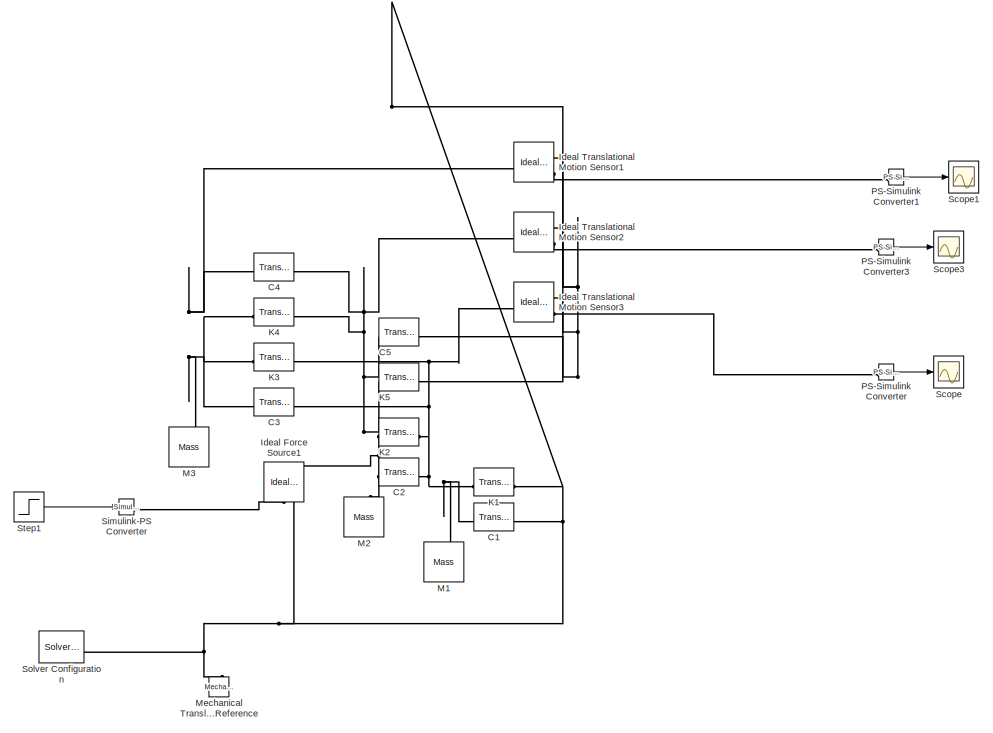
[diagram: root canvas - part 1/2, middle right region]
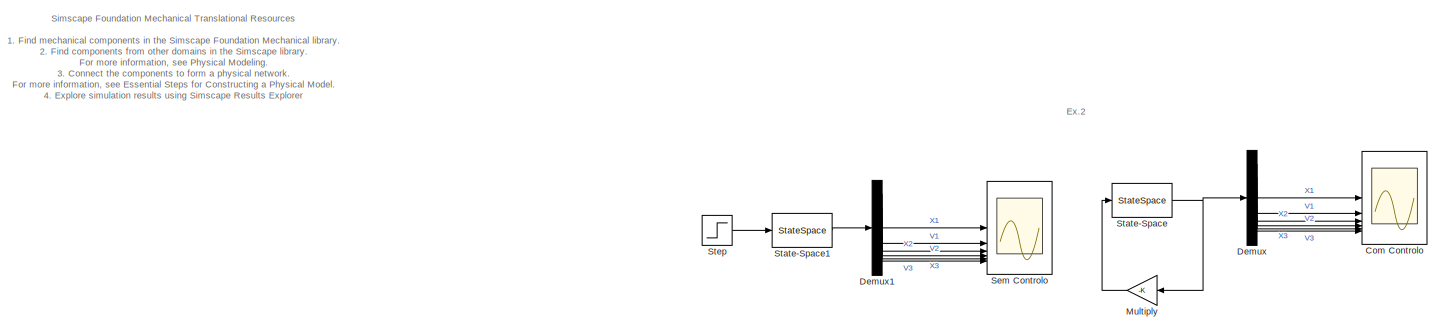
[diagram: root canvas - part 2/2, full width, bottom band]
MODEL slx_34393ef30c78
KIND model
CONFIG AbsTol = auto
CONFIG EnableMultiTasking = off
CONFIG FixedStep = auto
CONFIG MaxStep = auto
CONFIG MinStep = auto
CONFIG RelTol = 1e-3
CONFIG SampleTimeConstraint = Unconstrained
CONFIG SolverName = VariableStepAuto
CONFIG StartTime = 0.0
CONFIG StopTime = 10.0
BLOCK [Reference] C1  REF=fl_lib/Mechanical/Translational
Elements/Translational Damper
  Commented = on
  SourceBlock = fl_lib/Mechanical/Translational\nElements/Translational Damper
  SourceType = Translational Damper
BLOCK [Reference] C2  REF=fl_lib/Mechanical/Translational
Elements/Translational Damper
  Commented = on
  SourceBlock = fl_lib/Mechanical/Translational\nElements/Translational Damper
  SourceType = Translational Damper
BLOCK [Reference] C3  REF=fl_lib/Mechanical/Translational
Elements/Translational Damper
  Commented = on
  SourceBlock = fl_lib/Mechanical/Translational\nElements/Translational Damper
  SourceType = Translational Damper
BLOCK [Reference] C4  REF=fl_lib/Mechanical/Translational
Elements/Translational Damper
  Commented = on
  SourceBlock = fl_lib/Mechanical/Translational\nElements/Translational Damper
  SourceType = Translational Damper
BLOCK [Reference] C5  REF=fl_lib/Mechanical/Translational
Elements/Translational Damper
  Commented = on
  SourceBlock = fl_lib/Mechanical/Translational\nElements/Translational Damper
  SourceType = Translational Damper
BLOCK [Scope] Com Controlo
  Floating = off
  NumInputPorts = 6
  ScopeSpecificationString = Simulink.scopes.TimeScopeBlockCfg('CurrentConfiguration', extmgr.ConfigurationSet(extmgr.Configuration('Core','General UI',true),extmgr.Configuration('Core','Source UI',true),extmgr.Configuration('Sources','WiredSimulink',true,'DataLoggingVariableName','Data2','DataLogging',true,'DataLoggingSaveFormat','StructureWithTime'),extmgr.Configuration('Visuals','Time Domain',true,'SerializedDisplays',{str...<+1755ch>
BLOCK [Demux] Demux
  Outputs = 6
BLOCK [Demux] Demux1
  Outputs = 6
BLOCK [Reference] Ideal Force Source1  REF=fl_lib/Mechanical/Mechanical Sources/Ideal Force Source
  Commented = on
  NameLocation = right
  SourceBlock = fl_lib/Mechanical/Mechanical Sources/Ideal Force Source
  SourceType = Ideal Force Source
BLOCK [Reference] Ideal Translational Motion Sensor1  REF=fl_lib/Mechanical/Mechanical Sensors/Ideal Translational
Motion Sensor
  Commented = on
  SourceBlock = fl_lib/Mechanical/Mechanical Sensors/Ideal Translational\nMotion Sensor
  SourceType = Ideal Translational\nMotion Sensor
BLOCK [Reference] Ideal Translational Motion Sensor2  REF=fl_lib/Mechanical/Mechanical Sensors/Ideal Translational
Motion Sensor
  Commented = on
  SourceBlock = fl_lib/Mechanical/Mechanical Sensors/Ideal Translational\nMotion Sensor
  SourceType = Ideal Translational\nMotion Sensor
BLOCK [Reference] Ideal Translational Motion Sensor3  REF=fl_lib/Mechanical/Mechanical Sensors/Ideal Translational
Motion Sensor
  Commented = on
  SourceBlock = fl_lib/Mechanical/Mechanical Sensors/Ideal Translational\nMotion Sensor
  SourceType = Ideal Translational\nMotion Sensor
BLOCK [Reference] K1  REF=fl_lib/Mechanical/Translational
Elements/Translational Spring
  Commented = on
  SourceBlock = fl_lib/Mechanical/Translational\nElements/Translational Spring
  SourceType = Translational Spring
BLOCK [Reference] K2  REF=fl_lib/Mechanical/Translational
Elements/Translational Spring
  Commented = on
  SourceBlock = fl_lib/Mechanical/Translational\nElements/Translational Spring
  SourceType = Translational Spring
BLOCK [Reference] K3  REF=fl_lib/Mechanical/Translational
Elements/Translational Spring
  Commented = on
  SourceBlock = fl_lib/Mechanical/Translational\nElements/Translational Spring
  SourceType = Translational Spring
BLOCK [Reference] K4  REF=fl_lib/Mechanical/Translational
Elements/Translational Spring
  Commented = on
  SourceBlock = fl_lib/Mechanical/Translational\nElements/Translational Spring
  SourceType = Translational Spring
BLOCK [Reference] K5  REF=fl_lib/Mechanical/Translational
Elements/Translational Spring
  Commented = on
  SourceBlock = fl_lib/Mechanical/Translational\nElements/Translational Spring
  SourceType = Translational Spring
BLOCK [Reference] M1  REF=fl_lib/Mechanical/Translational
Elements/Mass
  Commented = on
  NameLocation = right
  SourceBlock = fl_lib/Mechanical/Translational\nElements/Mass
  SourceType = Mass
BLOCK [Reference] M2  REF=fl_lib/Mechanical/Translational
Elements/Mass
  Commented = on
  NameLocation = right
  SourceBlock = fl_lib/Mechanical/Translational\nElements/Mass
  SourceType = Mass
BLOCK [Reference] M3  REF=fl_lib/Mechanical/Translational
Elements/Mass
  Commented = on
  NameLocation = right
  SourceBlock = fl_lib/Mechanical/Translational\nElements/Mass
  SourceType = Mass
BLOCK [Reference] Mechanical Translational Reference  REF=fl_lib/Mechanical/Translational
Elements/Mechanical
Translational
Reference
  Commented = on
  SourceBlock = fl_lib/Mechanical/Translational\nElements/Mechanical\nTranslational\nReference
  SourceType = Mechanical\nTranslational\nReference
BLOCK [Gain] Multiply
  Gain = -K
  Multiplication = Matrix(K*u) (u vector)
  NameLocation = top
BLOCK [Reference] PS-Simulink Converter  REF=nesl_utility/PS-Simulink
Converter
  Commented = on
  SourceBlock = nesl_utility/PS-Simulink\nConverter
  SourceType = PS-Simulink\nConverter
BLOCK [Reference] PS-Simulink Converter1  REF=nesl_utility/PS-Simulink
Converter
  Commented = on
  SourceBlock = nesl_utility/PS-Simulink\nConverter
  SourceType = PS-Simulink\nConverter
BLOCK [Reference] PS-Simulink Converter3  REF=nesl_utility/PS-Simulink
Converter
  Commented = on
  SourceBlock = nesl_utility/PS-Simulink\nConverter
  SourceType = PS-Simulink\nConverter
BLOCK [Scope] Scope
  Commented = on
  Floating = off
  NumInputPorts = 1
  ScopeSpecificationString = Simulink.scopes.TimeScopeBlockCfg('CurrentConfiguration', extmgr.ConfigurationSet(extmgr.Configuration('Core','General UI',true),extmgr.Configuration('Core','Source UI',true),extmgr.Configuration('Sources','WiredSimulink',true,'DataLoggingVariableName','ScopeData1'),extmgr.Configuration('Visuals','Time Domain',true,'SerializedDisplays',{struct('MinYLimReal','-0.00237','MaxYLimReal','0.0062','YLabe...<+1376ch>
BLOCK [Scope] Scope1
  Commented = on
  Floating = off
  NumInputPorts = 1
  ScopeSpecificationString = Simulink.scopes.TimeScopeBlockCfg('CurrentConfiguration', extmgr.ConfigurationSet(extmgr.Configuration('Core','General UI',true),extmgr.Configuration('Core','Source UI',true),extmgr.Configuration('Sources','WiredSimulink',true,'DataLoggingVariableName','ScopeData2'),extmgr.Configuration('Visuals','Time Domain',true,'SerializedDisplays',{struct('MinYLimReal','-0.00184','MaxYLimReal','0.00363','YLab...<+1359ch>
BLOCK [Scope] Scope3
  Commented = on
  Floating = off
  NumInputPorts = 1
  ScopeSpecificationString = Simulink.scopes.TimeScopeBlockCfg('CurrentConfiguration', extmgr.ConfigurationSet(extmgr.Configuration('Core','General UI',true),extmgr.Configuration('Core','Source UI',true),extmgr.Configuration('Sources','WiredSimulink',true),extmgr.Configuration('Visuals','Time Domain',true,'SerializedDisplays',{struct('MinYLimReal','-0.00184','MaxYLimReal','0.00363','YLabelReal','','MinYLimMag','0.00000','MaxY...<+1320ch>
BLOCK [Scope] Sem Controlo
  Floating = off
  NumInputPorts = 6
  ScopeSpecificationString = Simulink.scopes.TimeScopeBlockCfg('CurrentConfiguration', extmgr.ConfigurationSet(extmgr.Configuration('Core','General UI',true),extmgr.Configuration('Core','Source UI',true),extmgr.Configuration('Sources','WiredSimulink',true,'DataLoggingVariableName','Data2s','DataLogging',true,'DataLoggingSaveFormat','StructureWithTime'),extmgr.Configuration('Visuals','Time Domain',true,'SerializedDisplays',{st...<+1756ch>
BLOCK [Reference] Simulink-PS Converter  REF=nesl_utility/Simulink-PS
Converter
  Commented = on
  SourceBlock = nesl_utility/Simulink-PS\nConverter
  SourceType = Simulink-PS\nConverter
BLOCK [Reference] Solver Configuration  REF=nesl_utility/Solver
Configuration
  Commented = on
  SourceBlock = nesl_utility/Solver\nConfiguration
  SourceType = Solver\nConfiguration
BLOCK [StateSpace] State-Space
  A = A
  B = B
  C = C
  D = D
  InitialCondition = x0
BLOCK [StateSpace] State-Space1
  A = A
  B = B
  C = C
  D = D
  InitialCondition = x0
BLOCK [Step] Step
  SampleTime = 0
BLOCK [Step] Step1
  Commented = on
  SampleTime = 0
ANNOTATION (root): 1. Find mechanical components in the Simscape Foundation Mechanical library . 2. Find components from other domains in the Simscape library . For more information, see Physical Modeling . 3. Connect the components to form a physical network. For more information, see Essential Steps for Constructing a Physical Model . 4. Explore simulation results using Simscape Results Explorer
ANNOTATION (root): Ex.2
ANNOTATION (root): Simscape Foundation Mechanical Translational Resources
LINE Demux1:1 -> Sem Controlo:1
LINE Demux1:2 -> Sem Controlo:2
LINE Demux1:3 -> Sem Controlo:3
LINE Demux1:4 -> Sem Controlo:4
LINE Demux1:5 -> Sem Controlo:5
LINE Demux1:6 -> Sem Controlo:6
LINE Demux:1 -> Com Controlo:1
LINE Demux:2 -> Com Controlo:2
LINE Demux:3 -> Com Controlo:3
LINE Demux:4 -> Com Controlo:4
LINE Demux:5 -> Com Controlo:5
LINE Demux:6 -> Com Controlo:6
LINE Multiply:1 -> State-Space:1
LINE PS-Simulink Converter1:1 -> Scope1:1
LINE PS-Simulink Converter3:1 -> Scope3:1
LINE PS-Simulink Converter:1 -> Scope:1
LINE State-Space1:1 -> Demux1:1
NET State-Space:1 -> Demux:1, Multiply:1
LINE Step1:1 -> Simulink-PS Converter:1
LINE Step:1 -> State-Space1:1
PNET net1: C1:LConn1 -- C2:RConn1 -- C3:RConn1 -- Ideal Translational Motion Sensor3:LConn1 -- K1:LConn1 -- K2:RConn1 -- K3:RConn1 -- M1:LConn1
PNET net2: C1:RConn1 -- C5:RConn1 -- Ideal Force Source1:RConn2 -- Ideal Translational Motion Sensor1:RConn1 -- Ideal Translational Motion Sensor2:RConn1 -- Ideal Translational Motion Sensor3:RConn1 -- K1:RConn1 -- K5:RConn1 -- Mechanical Translational Reference:LConn1 -- Solver Configuration:RConn1
PNET net3: C2:LConn1 -- C4:RConn1 -- C5:LConn1 -- Ideal Force Source1:LConn1 -- Ideal Translational Motion Sensor2:LConn1 -- K2:LConn1 -- K4:RConn1 -- K5:LConn1 -- M2:LConn1
PNET net4: C3:LConn1 -- C4:LConn1 -- Ideal Translational Motion Sensor1:LConn1 -- K3:LConn1 -- K4:LConn1 -- M3:LConn1
PLINE Ideal Force Source1:RConn1 -- Simulink-PS Converter:RConn1
PLINE Ideal Translational Motion Sensor1:RConn3 -- PS-Simulink Converter1:LConn1
PLINE Ideal Translational Motion Sensor2:RConn3 -- PS-Simulink Converter3:LConn1
PLINE Ideal Translational Motion Sensor3:RConn3 -- PS-Simulink Converter:LConn1
note: NET lines group one-source signal fan-out (src -> all destinations, sorted); 1:1 wires keep LINE; PNET lines group multi-terminal physical nets as a canonical sorted terminal list (undirected conserving connections); 2-terminal nets keep the pairwise PLINE form
